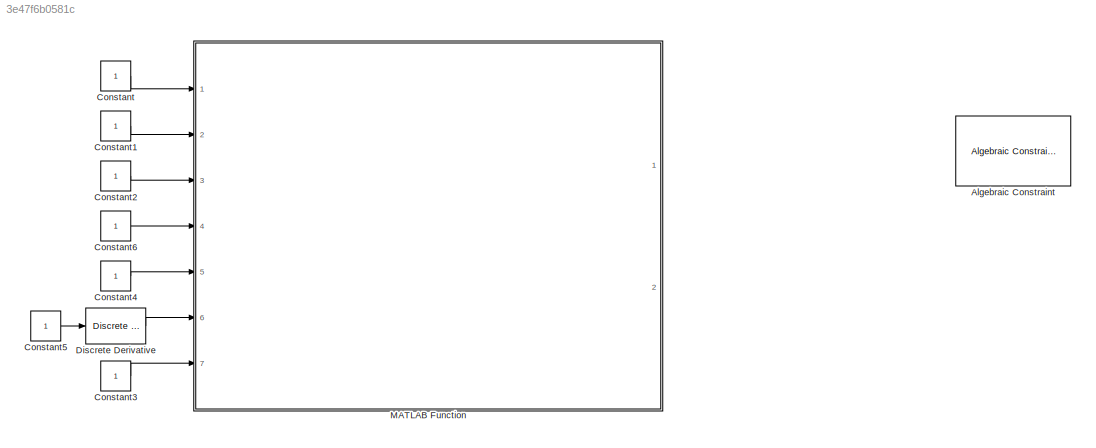
MODEL slx_3e47f6b0581c
KIND model
CONFIG AbsTol = auto
CONFIG FixedStep = 0.001
CONFIG MaxStep = auto
CONFIG MinStep = auto
CONFIG RelTol = 1e-3
CONFIG SampleTimeConstraint = Unconstrained
CONFIG Solver = FixedStepAuto
CONFIG SolverMode = Auto
CONFIG SolverName = FixedStepAuto
CONFIG StartTime = 0.0
CONFIG StopTime = 1.0
BLOCK [Reference] Algebraic Constraint  REF=simulink/Math
Operations/Algebraic Constraint
  Ports = [1, 1]
  SourceBlock = simulink/Math\nOperations/Algebraic Constraint
  SourceType = Algebraic Constraint
BLOCK [Constant] Constant
BLOCK [Constant] Constant1
BLOCK [Constant] Constant2
BLOCK [Constant] Constant3
BLOCK [Constant] Constant4
BLOCK [Constant] Constant5
BLOCK [Constant] Constant6
BLOCK [Reference] Discrete Derivative  REF=simulink/Discrete/Discrete Derivative
  Ports = [1, 1]
  SourceBlock = simulink/Discrete/Discrete Derivative
  SourceType = Discrete Derivative
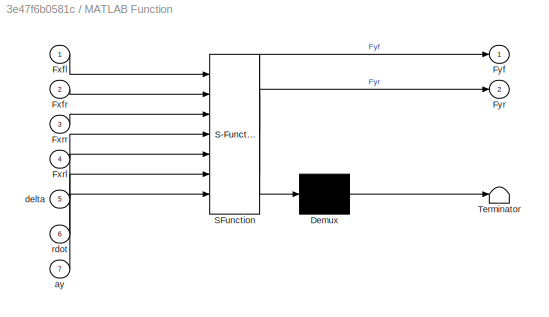
BLOCK [SubSystem] MATLAB Function
  ErrorFcn = Stateflow.Translate.translate
  InitFcn = d = 1.795;\nmv= 1529.98;\nlf = 1.35;\nlr = 1.23;\nIz = 4605;
  PermitHierarchicalResolution = ExplicitOnly
  Ports = [7, 2]
  RequestExecContextInheritance = off
  SFBlockType = MATLAB Function
  TreatAsAtomicUnit = on
  Variant = off
BLOCK [Demux] MATLAB Function/ Demux 
  Outputs = 1
  Ports = [1, 1]
BLOCK [S-Function] MATLAB Function/ SFunction 
  EnableBusSupport = on
  FunctionName = sf_sfun
  Parameters = Iz,d,lf,lr,mv
  PortCounts = [7 3]
  Ports = [7, 3]
  SFunctionDeploymentMode = off
  Tag = Stateflow S-Function lateralForceEstimator 2
BLOCK [Terminator] MATLAB Function/ Terminator 
BLOCK [Inport] MATLAB Function/Fxfl
  IconDisplay = Port number
BLOCK [Inport] MATLAB Function/Fxfr
  IconDisplay = Port number
  Port = 2
BLOCK [Inport] MATLAB Function/Fxrl
  IconDisplay = Port number
  Port = 4
BLOCK [Inport] MATLAB Function/Fxrr
  IconDisplay = Port number
  Port = 3
BLOCK [Outport] MATLAB Function/Fyf
  IconDisplay = Port number
BLOCK [Outport] MATLAB Function/Fyr
  IconDisplay = Port number
  Port = 2
BLOCK [Inport] MATLAB Function/ay
  IconDisplay = Port number
  Port = 7
BLOCK [Inport] MATLAB Function/delta
  IconDisplay = Port number
  Port = 5
BLOCK [Inport] MATLAB Function/rdot
  IconDisplay = Port number
  Port = 6
LINE Constant1:1 -> MATLAB Function:2
LINE Constant2:1 -> MATLAB Function:3
LINE Constant3:1 -> MATLAB Function:7
LINE Constant4:1 -> MATLAB Function:5
LINE Constant5:1 -> Discrete Derivative:1
LINE Constant6:1 -> MATLAB Function:4
LINE Constant:1 -> MATLAB Function:1
LINE Discrete Derivative:1 -> MATLAB Function:6
CHART MATLAB Function states=1 transitions=1
  STATE_LABEL 'eML_blk_kernel()'
  STATE_LABEL "SCRIPT:\nfunction [Fyf, Fyr]= fcn(Fxfl, Fxfr, Fxrr, Fxrl, delta, rdot, ay, d, mv, Iz, lr, lf)\n% %#codegen\ncoder.extrinsic('syms');\nsyms Fyfs;\nsyms Fyrs;\n% lf * Fyfs * cos(delta) - lr * Fyrs + d/2 * (-Fxfl*cos(delta) + Fxfr*cos(delta)- Fxrl + Fxrr)+ lf*(Fxfl+Fxfr)*sin(delta) - Iz*rdot == 0\n[fyf_sol, fyr_sol] = solve(Fxfl*sin(delta) + Fxfr*sin(delta) + Fyfs*cos(delta) + Fyrs - mv*ay == 0, Fyfs, Fyrs)...<+67ch>"
